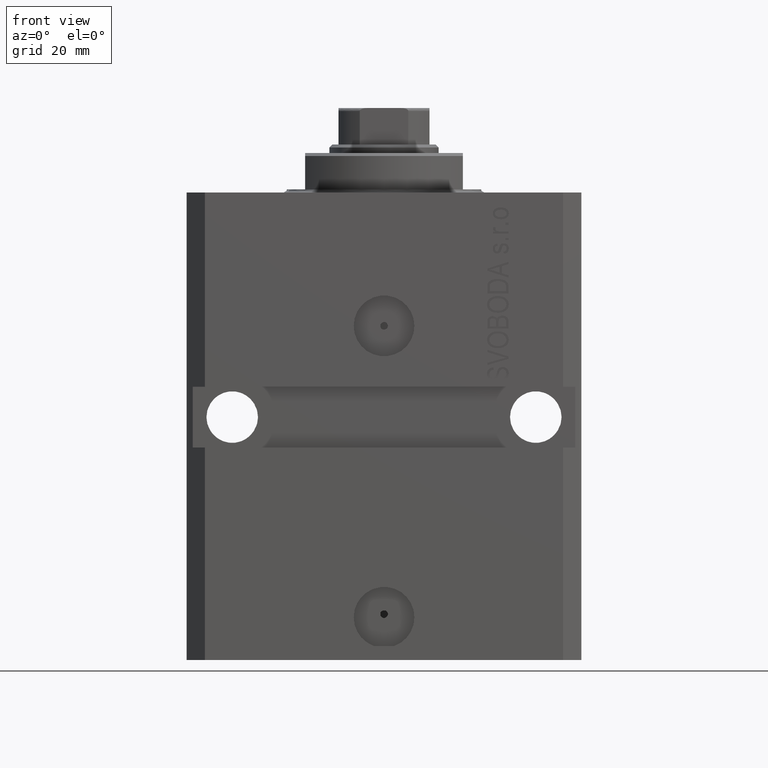
[diagram: clean part render]
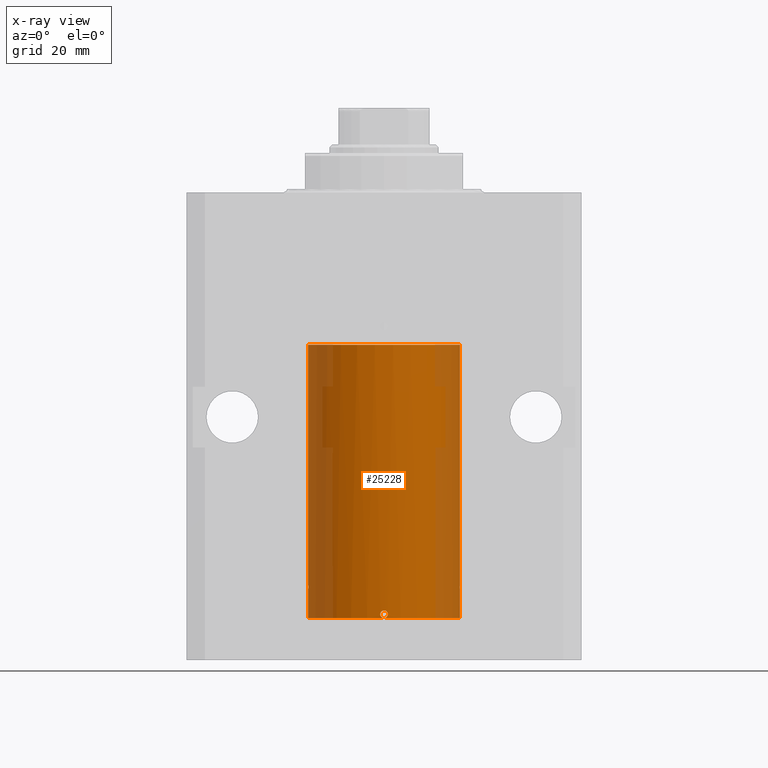
[diagram: x-ray — body ghosted, one internal face saturated and labeled with its STEP entity id]
A machine part, front view, then the same camera in x-ray: the body is ghosted and one INTERNAL B-rep face — a face not visible from any outside direction — is saturated and labeled: STEP entity #25228.
In plain terms, the highlighted cylindrical surface (partial cylindrical patch) has radius 12.5 mm, axis along (0, 0, 1).
Its self-contained STEP definition (entity closure, byte-faithful):
#757 = DIRECTION ( 'NONE',  ( -0.000000000000000000, -0.000000000000000000, 1.000000000000000000 ) ) ;
#980 = AXIS2_PLACEMENT_3D ( 'NONE', #16831, #6372, #40730 ) ;
#1030 = CARTESIAN_POINT ( 'NONE',  ( -12.50000000000000000, 1.530808498934191127E-15, -70.09999999999999432 ) ) ;
#1320 = CYLINDRICAL_SURFACE ( 'NONE', #30437, 12.50000000000000000 ) ;
#1827 = CARTESIAN_POINT ( 'NONE',  ( -0.5571821530518563659, -12.48810851326189031, -69.14827784464195304 ) ) ;
#2339 = CARTESIAN_POINT ( 'NONE',  ( 0.6250000000003167466, -12.48436522214884725, -69.63812747540310966 ) ) ;
#2775 = CIRCLE ( 'NONE', #25275, 12.50000000000000000 ) ;
#2965 = CARTESIAN_POINT ( 'NONE',  ( -12.50000000000000000, 1.530808498934191127E-15, -25.10000000000000142 ) ) ;
#2986 = CARTESIAN_POINT ( 'NONE',  ( 12.49625914831439744, -0.3268155536465563449, -65.55713681627779010 ) ) ;
#3064 = CARTESIAN_POINT ( 'NONE',  ( 12.48436522214885613, -0.6250000000001719735, -64.83498467599889636 ) ) ;
#3081 = ORIENTED_EDGE ( 'NONE', *, *, #19732, .T. ) ;
#3199 = CARTESIAN_POINT ( 'NONE',  ( 12.48436522214885436, -0.6250000000001719735, -65.00000000000000000 ) ) ;
#3369 = EDGE_CURVE ( 'NONE', #5331, #31903, #2775, .T. ) ;
#3413 = EDGE_CURVE ( 'NONE', #16181, #43748, #39071, .T. ) ;
#3584 = EDGE_CURVE ( 'NONE', #13562, #31903, #15639, .T. ) ;
#3782 = EDGE_CURVE ( 'NONE', #16911, #43748, #21798, .T. ) ;
#3941 = DIRECTION ( 'NONE',  ( -0.000000000000000000, -0.000000000000000000, 1.000000000000000000 ) ) ;
#4857 = DIRECTION ( 'NONE',  ( 1.000000000000000000, 0.000000000000000000, 0.000000000000000000 ) ) ;
#5331 = VERTEX_POINT ( 'NONE', #1030 ) ;
#5419 = CARTESIAN_POINT ( 'NONE',  ( -12.50000000000000000, 1.530808498934191127E-15, -70.09999999999999432 ) ) ;
#6372 = DIRECTION ( 'NONE',  ( 0.000000000000000000, 0.000000000000000000, 1.000000000000000000 ) ) ;
#6386 = CARTESIAN_POINT ( 'NONE',  ( 12.50000000000000000, -1.836039810331332019E-15, -65.62500000000000000 ) ) ;
#6469 = CARTESIAN_POINT ( 'NONE',  ( 12.48811067843434230, -0.5571444604332078665, -64.67319321899357476 ) ) ;
#6587 = CARTESIAN_POINT ( 'NONE',  ( -12.48437204107163190, -0.6248637920779611665, -65.16542285240649335 ) ) ;
#6607 = EDGE_CURVE ( 'NONE', #31903, #30700, #23497, .T. ) ;
#6797 = CARTESIAN_POINT ( 'NONE',  ( -12.50000000000000355, -0.1651708725692959678, -64.37500000000002842 ) ) ;
#7259 = CARTESIAN_POINT ( 'NONE',  ( 12.50000000000000000, 0.000000000000000000, -70.09999999999999432 ) ) ;
#8437 = CARTESIAN_POINT ( 'NONE',  ( 12.50000000000017941, 3.868073689162038701E-13, -64.37499999999640465 ) ) ;
#8735 = B_SPLINE_CURVE_WITH_KNOTS ( 'NONE', 3,
 ( #27359, #17581, #27588, #6469, #3064, #23735 ),
 .UNSPECIFIED., .F., .F.,
 ( 4, 2, 4 ),
 ( 0.001954339881912461711, 0.002443067948757210103, 0.002931796015601958062 ),
 .UNSPECIFIED. ) ;
#8865 = CARTESIAN_POINT ( 'NONE',  ( 0.1629224624750973960, -12.50000332393458891, -68.84993352130271660 ) ) ;
#9164 = DIRECTION ( 'NONE',  ( 1.000000000000000000, 0.000000000000000000, 0.000000000000000000 ) ) ;
#9765 = CARTESIAN_POINT ( 'NONE',  ( 12.50000000000000000, -1.836039810331332019E-15, -65.62500000000000000 ) ) ;
#9768 = CARTESIAN_POINT ( 'NONE',  ( -12.48811925907523879, -0.5569488909189597159, -65.32709604503182277 ) ) ;
#9909 = CARTESIAN_POINT ( 'NONE',  ( -12.50000000000000000, -1.050566418211748297E-14, -64.37500000000000000 ) ) ;
#9995 = CARTESIAN_POINT ( 'NONE',  ( -12.50000000000017941, 3.883381774819353300E-13, -65.62500000000359535 ) ) ;
#10432 = CARTESIAN_POINT ( 'NONE',  ( -12.48809300548636259, -0.5575284115737593194, -64.67380822970859811 ) ) ;
#10455 = CARTESIAN_POINT ( 'NONE',  ( 12.50000000000000178, -0.1650848372273117926, -65.62500000000004263 ) ) ;
#10977 = LINE ( 'NONE', #41912, #21162 ) ;
#11125 = ORIENTED_EDGE ( 'NONE', *, *, #25063, .T. ) ;
#11675 = VERTEX_POINT ( 'NONE', #24197 ) ;
#11924 = VERTEX_POINT ( 'NONE', #18510 ) ;
#12561 = CARTESIAN_POINT ( 'NONE',  ( 1.470104640658484994E-15, -12.50000000000000000, -70.09999999999999432 ) ) ;
#12941 = CARTESIAN_POINT ( 'NONE',  ( 0.6087772866342635592, -12.48520622767670574, -69.31152541805840883 ) ) ;
#13562 = VERTEX_POINT ( 'NONE', #14783 ) ;
#14072 = DIRECTION ( 'NONE',  ( -0.000000000000000000, -0.000000000000000000, 1.000000000000000000 ) ) ;
#14124 = CARTESIAN_POINT ( 'NONE',  ( 1.470104640658484994E-15, -12.50000000000000000, -70.09999999999999432 ) ) ;
#14168 = EDGE_CURVE ( 'NONE', #16911, #44746, #8735, .T. ) ;
#14783 = CARTESIAN_POINT ( 'NONE',  ( -0.6250000000000025535, -12.48436522214886324, -69.47499999999999432 ) ) ;
#14909 = EDGE_CURVE ( 'NONE', #11924, #25313, #32562, .T. ) ;
#15034 = CARTESIAN_POINT ( 'NONE',  ( -0.1650848372272839815, -12.50000000000000178, -70.10000000000000853 ) ) ;
#15052 = LINE ( 'NONE', #31647, #38266 ) ;
#15169 = DIRECTION ( 'NONE',  ( 1.000000000000000000, 0.000000000000000000, 0.000000000000000000 ) ) ;
#15487 = ORIENTED_EDGE ( 'NONE', *, *, #18332, .T. ) ;
#15639 = B_SPLINE_CURVE_WITH_KNOTS ( 'NONE', 3,
 ( #18215, #34833, #35496, #24591, #15034, #14124 ),
 .UNSPECIFIED., .F., .F.,
 ( 4, 2, 4 ),
 ( 0.002931796015602113753, 0.003420015203430352198, 0.003908234391258590644 ),
 .UNSPECIFIED. ) ;
#16181 = VERTEX_POINT ( 'NONE', #2965 ) ;
#16412 = CARTESIAN_POINT ( 'NONE',  ( 0.1636982395582734229, -12.49915742890632053, -70.08372397847031721 ) ) ;
#16578 = CARTESIAN_POINT ( 'NONE',  ( 0.5002336959535146343, -12.49012317397092886, -69.09133113277157179 ) ) ;
#16831 = CARTESIAN_POINT ( 'NONE',  ( 0.000000000000000000, 0.000000000000000000, -70.09999999999999432 ) ) ;
#16911 = VERTEX_POINT ( 'NONE', #8437 ) ;
#17481 = CARTESIAN_POINT ( 'NONE',  ( -12.50000000000000533, -0.1631389274720978777, -65.62500000000017053 ) ) ;
#17581 = CARTESIAN_POINT ( 'NONE',  ( 12.50000000000000355, -0.1632239044005776296, -64.37499999999977263 ) ) ;
#18215 = CARTESIAN_POINT ( 'NONE',  ( -0.6250000000000025535, -12.48436522214886324, -69.47499999999999432 ) ) ;
#18332 = EDGE_CURVE ( 'NONE', #31903, #11675, #19393, .T. ) ;
#18510 = CARTESIAN_POINT ( 'NONE',  ( -12.50000000000017941, 3.883381774819353300E-13, -65.62500000000359535 ) ) ;
#18718 = CARTESIAN_POINT ( 'NONE',  ( 0.000000000000000000, 0.000000000000000000, -70.09999999999999432 ) ) ;
#19091 = CARTESIAN_POINT ( 'NONE',  ( -0.3266214369556185715, -12.49626442692393979, -68.91775879961872420 ) ) ;
#19393 = B_SPLINE_CURVE_WITH_KNOTS ( 'NONE', 3,
 ( #12561, #40306, #16412, #40532, #30274, #29377, #2339, #43266 ),
 .UNSPECIFIED., .F., .F.,
 ( 4, 2, 2, 4 ),
 ( 0.000000000000000000, 0.0002443481056286064194, 0.0004886962112572128389, 0.0009773924225144256777 ),
 .UNSPECIFIED. ) ;
#19500 = LINE ( 'NONE', #5419, #32472 ) ;
#19732 = EDGE_CURVE ( 'NONE', #25313, #16181, #19500, .T. ) ;
#19758 = CARTESIAN_POINT ( 'NONE',  ( -0.6250000000000025535, -12.48436522214886324, -69.47499999999999432 ) ) ;
#20442 = CARTESIAN_POINT ( 'NONE',  ( -12.50000000000000000, -1.050566418211748297E-14, -64.37500000000000000 ) ) ;
#20896 = ORIENTED_EDGE ( 'NONE', *, *, #6607, .F. ) ;
#21023 = ORIENTED_EDGE ( 'NONE', *, *, #28790, .T. ) ;
#21162 = VECTOR ( 'NONE', #3941, 1000.000000000000000 ) ;
#21179 = ORIENTED_EDGE ( 'NONE', *, *, #3584, .T. ) ;
#21798 = LINE ( 'NONE', #7259, #42760 ) ;
#21938 = VERTEX_POINT ( 'NONE', #9765 ) ;
#22237 = CARTESIAN_POINT ( 'NONE',  ( 12.48436522214885436, -0.6250000000001719735, -65.00000000000000000 ) ) ;
#22289 = CARTESIAN_POINT ( 'NONE',  ( 1.470104640658484994E-15, -12.50000000000000000, -70.09999999999999432 ) ) ;
#22499 = ORIENTED_EDGE ( 'NONE', *, *, #3413, .T. ) ;
#23213 = EDGE_LOOP ( 'NONE', ( #29305, #39638, #43520, #3081, #22499, #23769, #30803, #21023, #40470, #20896, #15487, #11125, #21179 ) ) ;
#23497 = CIRCLE ( 'NONE', #980, 12.50000000000000000 ) ;
#23636 = CARTESIAN_POINT ( 'NONE',  ( -12.49625500642807729, -0.3269795983093125580, -64.44293326880233508 ) ) ;
#23735 = CARTESIAN_POINT ( 'NONE',  ( 12.48436522214885436, -0.6250000000001719735, -65.00000000000000000 ) ) ;
#23769 = ORIENTED_EDGE ( 'NONE', *, *, #3782, .F. ) ;
#23971 = CARTESIAN_POINT ( 'NONE',  ( 12.50000000000000000, 0.000000000000000000, -25.10000000000000142 ) ) ;
#24197 = CARTESIAN_POINT ( 'NONE',  ( 0.6250000000080512264, -12.48436522214846001, -69.47499999999922693 ) ) ;
#24591 = CARTESIAN_POINT ( 'NONE',  ( -0.3268155536464903976, -12.49625914831439921, -70.03213681627768494 ) ) ;
#25063 = EDGE_CURVE ( 'NONE', #11675, #13562, #40875, .T. ) ;
#25162 = CARTESIAN_POINT ( 'NONE',  ( 0.000000000000000000, 0.000000000000000000, -70.09999999999999432 ) ) ;
#25228 = ADVANCED_FACE ( 'NONE', ( #42462 ), #1320, .F. ) ;
#25275 = AXIS2_PLACEMENT_3D ( 'NONE', #18718, #25761, #4857 ) ;
#25313 = VERTEX_POINT ( 'NONE', #9909 ) ;
#25373 = B_SPLINE_CURVE_WITH_KNOTS ( 'NONE', 3,
 ( #3199, #27726, #41625, #2986, #10455, #6386 ),
 .UNSPECIFIED., .F., .F.,
 ( 4, 2, 4 ),
 ( 0.002931796015601958062, 0.003420015203430274570, 0.003908234391258590644 ),
 .UNSPECIFIED. ) ;
#25761 = DIRECTION ( 'NONE',  ( 0.000000000000000000, 0.000000000000000000, 1.000000000000000000 ) ) ;
#26577 = CARTESIAN_POINT ( 'NONE',  ( -0.6250000000000027756, -12.48436522214886502, -69.31002761350272579 ) ) ;
#26805 = CARTESIAN_POINT ( 'NONE',  ( -0.1634321124498647193, -12.49999667087055499, -68.85006658259450774 ) ) ;
#27129 = CARTESIAN_POINT ( 'NONE',  ( 12.50000000000000000, 0.000000000000000000, -70.09999999999999432 ) ) ;
#27359 = CARTESIAN_POINT ( 'NONE',  ( 12.50000000000017941, 3.868073689162038701E-13, -64.37499999999640465 ) ) ;
#27588 = CARTESIAN_POINT ( 'NONE',  ( 12.49626862995824261, -0.3264790874448512681, -64.44266345233398852 ) ) ;
#27726 = CARTESIAN_POINT ( 'NONE',  ( 12.48436522214885080, -0.6250000000001718625, -65.16484350486189214 ) ) ;
#28790 = EDGE_CURVE ( 'NONE', #44746, #21938, #25373, .T. ) ;
#29182 = DIRECTION ( 'NONE',  ( 0.000000000000000000, 0.000000000000000000, 1.000000000000000000 ) ) ;
#29305 = ORIENTED_EDGE ( 'NONE', *, *, #3369, .F. ) ;
#29377 = CARTESIAN_POINT ( 'NONE',  ( 0.5573988467447082984, -12.48809900631781034, -69.80140147935480854 ) ) ;
#30215 = CARTESIAN_POINT ( 'NONE',  ( 0.6250000000080512264, -12.48436522214846001, -69.47499999999922693 ) ) ;
#30274 = CARTESIAN_POINT ( 'NONE',  ( 0.3844519291904487934, -12.49421963472024188, -69.97447303647051342 ) ) ;
#30437 = AXIS2_PLACEMENT_3D ( 'NONE', #25162, #39041, #15169 ) ;
#30700 = VERTEX_POINT ( 'NONE', #27129 ) ;
#30803 = ORIENTED_EDGE ( 'NONE', *, *, #14168, .T. ) ;
#30873 = EDGE_CURVE ( 'NONE', #5331, #11924, #10977, .T. ) ;
#31080 = AXIS2_PLACEMENT_3D ( 'NONE', #39643, #29182, #9164 ) ;
#31647 = CARTESIAN_POINT ( 'NONE',  ( 12.50000000000000000, 0.000000000000000000, -70.09999999999999432 ) ) ;
#31903 = VERTEX_POINT ( 'NONE', #22289 ) ;
#32472 = VECTOR ( 'NONE', #33384, 1000.000000000000000 ) ;
#32562 = B_SPLINE_CURVE_WITH_KNOTS ( 'NONE', 3,
 ( #9995, #17481, #37730, #9768, #6587, #40941, #10432, #23636, #6797, #20442 ),
 .UNSPECIFIED., .F., .F.,
 ( 4, 2, 2, 2, 4 ),
 ( 0.001954339881912785671, 0.002442813509249236806, 0.002931287136585688374, 0.003419760763922139509, 0.003908234391258590644 ),
 .UNSPECIFIED. ) ;
#33190 = CARTESIAN_POINT ( 'NONE',  ( 0.6249999999998496758, -12.48436522214886857, -69.39345217010018985 ) ) ;
#33384 = DIRECTION ( 'NONE',  ( -0.000000000000000000, -0.000000000000000000, 1.000000000000000000 ) ) ;
#33423 = CARTESIAN_POINT ( 'NONE',  ( 0.5460961315382516501, -12.48810487413754444, -69.16017824283937898 ) ) ;
#34833 = CARTESIAN_POINT ( 'NONE',  ( -0.6250000000000026645, -12.48436522214885969, -69.63984350486184383 ) ) ;
#35496 = CARTESIAN_POINT ( 'NONE',  ( -0.5573321180046024725, -12.48810161786719242, -69.80148238604530775 ) ) ;
#37478 = CARTESIAN_POINT ( 'NONE',  ( 0.3251408448057629963, -12.49631649875954764, -68.91629557722380639 ) ) ;
#37730 = CARTESIAN_POINT ( 'NONE',  ( -12.49627279065598451, -0.3263143231498932817, -65.55740725890370868 ) ) ;
#38266 = VECTOR ( 'NONE', #757, 1000.000000000000000 ) ;
#39041 = DIRECTION ( 'NONE',  ( -0.000000000000000000, -0.000000000000000000, 1.000000000000000000 ) ) ;
#39071 = CIRCLE ( 'NONE', #31080, 12.50000000000000000 ) ;
#39638 = ORIENTED_EDGE ( 'NONE', *, *, #30873, .T. ) ;
#39643 = CARTESIAN_POINT ( 'NONE',  ( 0.000000000000000000, 0.000000000000000000, -25.10000000000000142 ) ) ;
#40306 = CARTESIAN_POINT ( 'NONE',  ( 0.08262306818364176242, -12.50000000000000000, -70.09999999999999432 ) ) ;
#40470 = ORIENTED_EDGE ( 'NONE', *, *, #40846, .F. ) ;
#40532 = CARTESIAN_POINT ( 'NONE',  ( 0.3151108292487665996, -12.49625698805480845, -70.02093695688176922 ) ) ;
#40730 = DIRECTION ( 'NONE',  ( 1.000000000000000000, 0.000000000000000000, 0.000000000000000000 ) ) ;
#40846 = EDGE_CURVE ( 'NONE', #30700, #21938, #15052, .T. ) ;
#40875 = B_SPLINE_CURVE_WITH_KNOTS ( 'NONE', 3,
 ( #30215, #33190, #12941, #33423, #16578, #37478, #8865, #26805, #19091, #1827, #26577, #19758 ),
 .UNSPECIFIED., .F., .F.,
 ( 4, 2, 2, 2, 2, 4 ),
 ( 0.0009773924225144256777, 0.001221692871650375710, 0.001465993320786325958, 0.001954594219058255079, 0.002443195117330184199, 0.002931796015602113753 ),
 .UNSPECIFIED. ) ;
#40941 = CARTESIAN_POINT ( 'NONE',  ( -12.48435842450557942, -0.6251357828645015546, -64.83560799371402084 ) ) ;
#41625 = CARTESIAN_POINT ( 'NONE',  ( 12.48810161786718709, -0.5573321180047424717, -65.32648238604538449 ) ) ;
#41912 = CARTESIAN_POINT ( 'NONE',  ( -12.50000000000000000, 1.530808498934191127E-15, -70.09999999999999432 ) ) ;
#42462 = FACE_OUTER_BOUND ( 'NONE', #23213, .T. ) ;
#42760 = VECTOR ( 'NONE', #14072, 1000.000000000000000 ) ;
#43266 = CARTESIAN_POINT ( 'NONE',  ( 0.6250000000080512264, -12.48436522214846001, -69.47499999999922693 ) ) ;
#43520 = ORIENTED_EDGE ( 'NONE', *, *, #14909, .T. ) ;
#43748 = VERTEX_POINT ( 'NONE', #23971 ) ;
#44746 = VERTEX_POINT ( 'NONE', #22237 ) ;